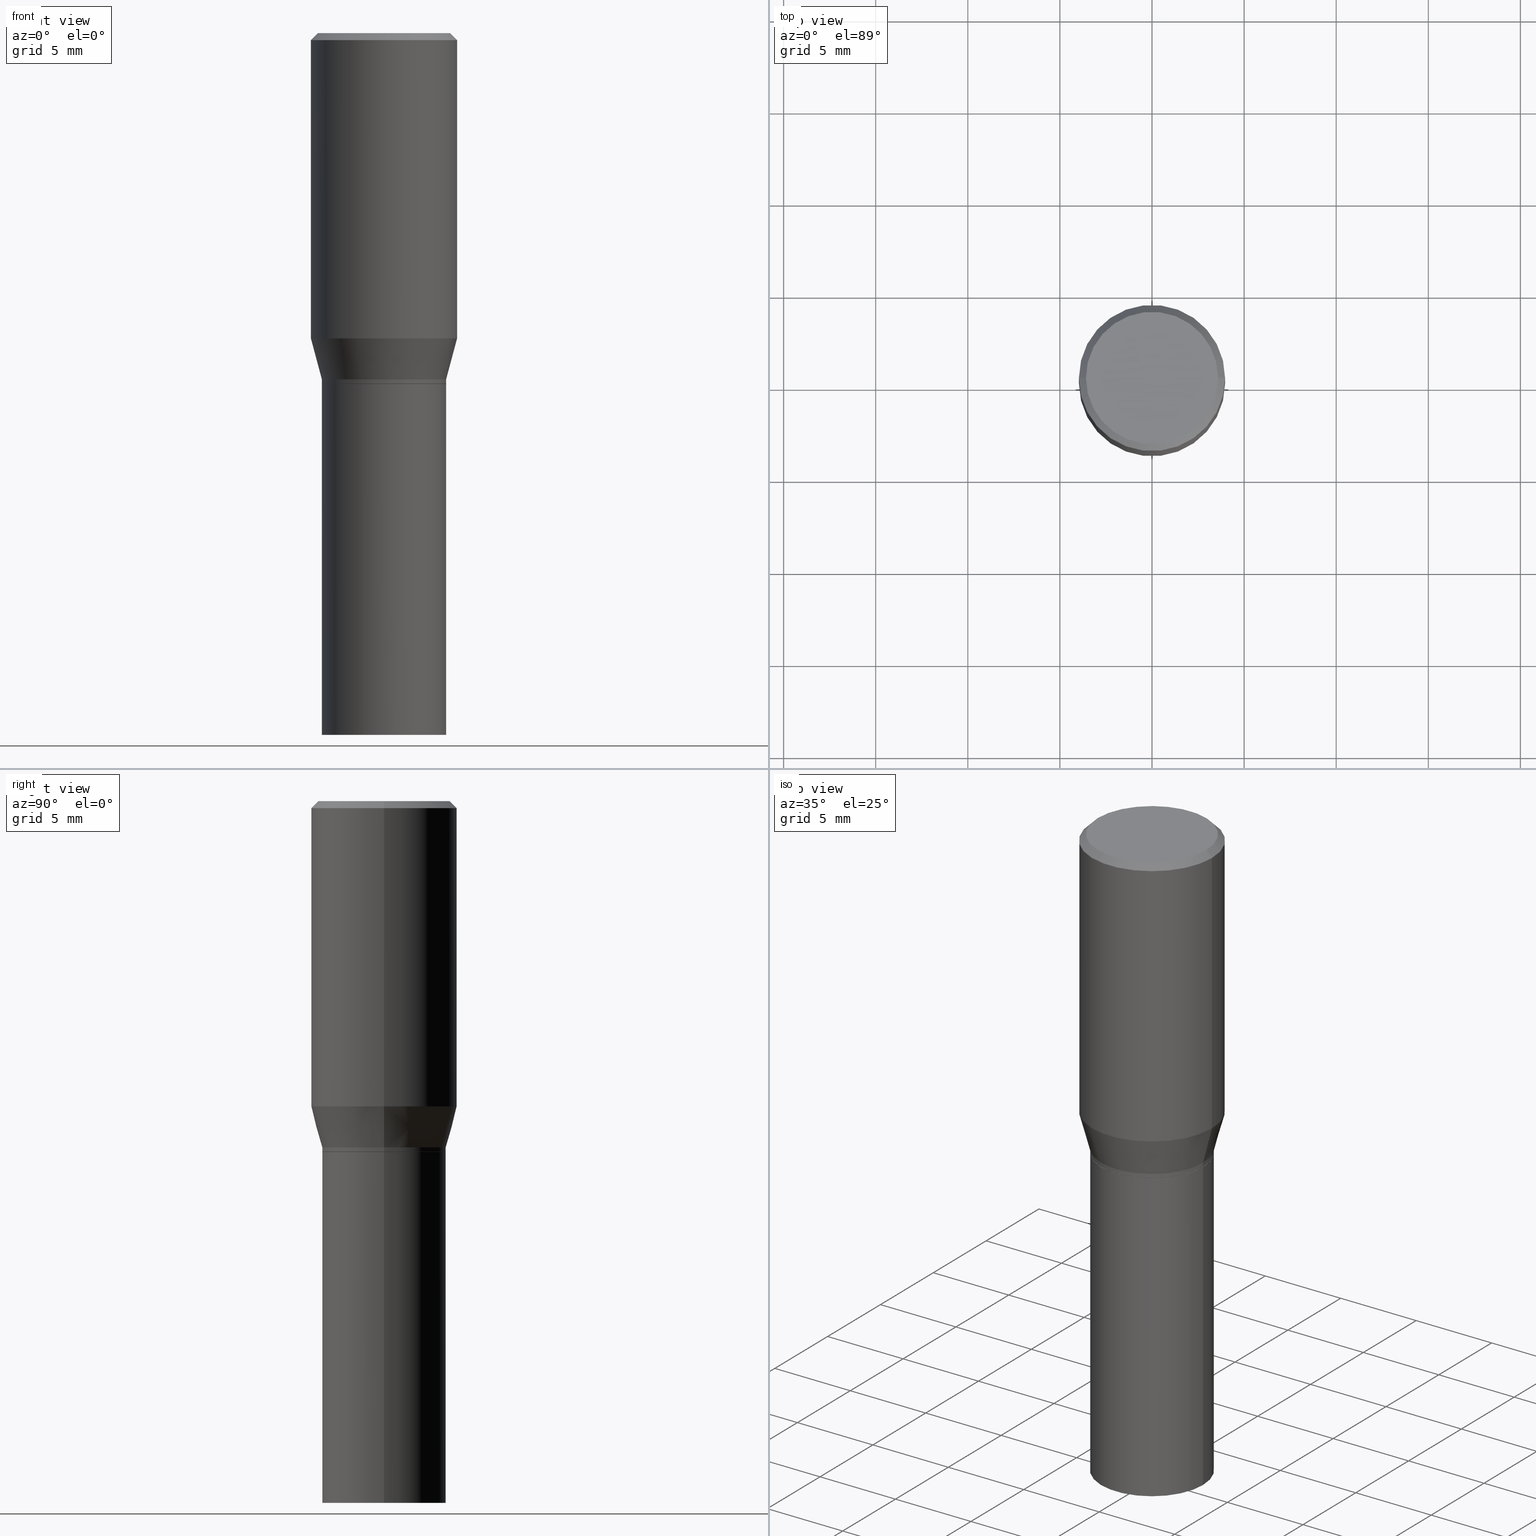
[diagram: canonical four-view strip — front | top / right | iso, engineering-drawing reading convention]
A machine part, canonical four-view strip (front | top / right | iso — engineering-drawing reading convention). The complete STEP part file that produces these views, byte-faithful:
ISO-10303-21;
HEADER;
FILE_DESCRIPTION (( 'STEP AP203' ),
    '1' );
FILE_NAME ('30447.STEP',
    '2024-03-13T16:10:57',
    ( '' ),
    ( '' ),
    'SwSTEP 2.0',
    'SolidWorks 2023',
    '' );
FILE_SCHEMA (( 'CONFIG_CONTROL_DESIGN' ));
ENDSEC;

DATA;
#1 = APPROVAL_DATE_TIME ( #61, #161 ) ;
#2 = EDGE_CURVE ( 'NONE', #108, #404, #413, .T. ) ;
#3 = CARTESIAN_POINT ( 'NONE',  ( -0.1562500000000000000, 1.110223024625156540E-15, -7.685836078523291160E-30 ) ) ;
#4 = LINE ( 'NONE', #408, #13 ) ;
#5 = ORIENTED_EDGE ( 'NONE', *, *, #305, .T. ) ;
#6 = CARTESIAN_POINT ( 'NONE',  ( -0.1412500000000000144, 1.012529588264508555E-15, -4.362760153143304915E-17 ) ) ;
#7 = ORIENTED_EDGE ( 'NONE', *, *, #399, .T. ) ;
#8 = DIRECTION ( 'NONE',  ( 0.2588190451025214611, 1.565188264969620982E-15, 0.9659258262890679791 ) ) ;
#9 = APPROVAL_ROLE ( '' ) ;
#10 = ORIENTED_EDGE ( 'NONE', *, *, #233, .T. ) ;
#11 = DIRECTION ( 'NONE',  ( 1.000000000000000000, -6.982962677686268288E-15, 0.000000000000000000 ) ) ;
#12 = CIRCLE ( 'NONE', #73, 0.1328000000000000569 ) ;
#13 = VECTOR ( 'NONE', #448, 39.37007874015748143 ) ;
#14 = ORIENTED_EDGE ( 'NONE', *, *, #102, .F. ) ;
#15 = ORIENTED_EDGE ( 'NONE', *, *, #276, .T. ) ;
#16 = DIRECTION ( 'NONE',  ( 1.000000000000000000, 0.000000000000000000, 0.000000000000000000 ) ) ;
#17 = EDGE_LOOP ( 'NONE', ( #354, #20, #10, #143 ) ) ;
#18 = AXIS2_PLACEMENT_3D ( 'NONE', #225, #379, #199 ) ;
#19 = AXIS2_PLACEMENT_3D ( 'NONE', #434, #430, #31 ) ;
#20 = ORIENTED_EDGE ( 'NONE', *, *, #30, .F. ) ;
#21 = DIRECTION ( 'NONE',  ( 1.000000000000000000, -6.982962677686263555E-15, 0.000000000000000000 ) ) ;
#22 = FACE_OUTER_BOUND ( 'NONE', #445, .T. ) ;
#23 = CARTESIAN_POINT ( 'NONE',  ( 0.1328000000000000014, -3.545948447729095705E-15, -0.7500000000000001110 ) ) ;
#24 = VECTOR ( 'NONE', #281, 39.37007874015748143 ) ;
#25 = DIRECTION ( 'NONE',  ( 1.000000000000000000, -6.982962677686266711E-15, 4.876176775795935232E-29 ) ) ;
#26 = DIRECTION ( 'NONE',  ( 1.000000000000000000, -6.982962677686265133E-15, 0.000000000000000000 ) ) ;
#27 = FACE_OUTER_BOUND ( 'NONE', #368, .T. ) ;
#28 = VECTOR ( 'NONE', #283, 39.37007874015748143 ) ;
#29 = PLANE ( 'NONE',  #272 ) ;
#30 = EDGE_CURVE ( 'NONE', #43, #258, #201, .T. ) ;
#31 = DIRECTION ( 'NONE',  ( 1.000000000000000000, -6.982962677686263555E-15, 0.000000000000000000 ) ) ;
#32 = CARTESIAN_POINT ( 'NONE',  ( 3.576687321579069994E-29, -5.368277968210015545E-15, -1.500000000000000222 ) ) ;
#33 = FACE_OUTER_BOUND ( 'NONE', #375, .T. ) ;
#34 = AXIS2_PLACEMENT_3D ( 'NONE', #68, #101, #171 ) ;
#35 = EDGE_LOOP ( 'NONE', ( #293, #378, #398, #185 ) ) ;
#36 = CARTESIAN_POINT ( 'NONE',  ( 0.1328000000000000569, -3.544202707059674202E-15, -0.7495000000000000551 ) ) ;
#37 = ORIENTED_EDGE ( 'NONE', *, *, #422, .T. ) ;
#38 = DIRECTION ( 'NONE',  ( -2.438088387897960049E-29, 3.491481338843145188E-15, 1.000000000000000000 ) ) ;
#39 = PERSON_AND_ORGANIZATION_ROLE ( 'design_supplier' ) ;
#40 = CC_DESIGN_PERSON_AND_ORGANIZATION_ASSIGNMENT ( #218, #223, ( #170 ) ) ;
#41 = AXIS2_PLACEMENT_3D ( 'NONE', #126, #393, #173 ) ;
#42 = CARTESIAN_POINT ( 'NONE',  ( 0.1323000000000000009, -3.542456966390252304E-15, -0.7500000000000001110 ) ) ;
#43 = VERTEX_POINT ( 'NONE', #6 ) ;
#44 = CARTESIAN_POINT ( 'NONE',  ( 1.595627822192971094E-29, -2.278133644900773069E-15, -0.6524834085625104141 ) ) ;
#45 = COORDINATED_UNIVERSAL_TIME_OFFSET ( 5, 0, .BEHIND. ) ;
#46 = ORIENTED_EDGE ( 'NONE', *, *, #274, .F. ) ;
#47 = PRODUCT ( '30447', '30447', '', ( #324 ) ) ;
#48 = ADVANCED_FACE ( 'NONE', ( #282 ), #442, .F. ) ;
#49 = CARTESIAN_POINT ( 'NONE',  ( -0.1328000000000000569, 9.436007530894134510E-16, -6.532345799858516735E-30 ) ) ;
#50 = CONICAL_SURFACE ( 'NONE', #41, 0.1562500000000000000, 0.7853981633974495002 ) ;
#51 = DIRECTION ( 'NONE',  ( 1.000000000000000000, -6.982962677686265133E-15, 0.000000000000000000 ) ) ;
#52 = DIRECTION ( 'NONE',  ( 2.438088387897960049E-29, -3.491481338843145188E-15, -1.000000000000000000 ) ) ;
#53 = PERSON ( 'UNSPECIFIED', 'UNSPECIFIED', 'UNSPECIFIED', ('UNSPECIFIED'), ('UNSPECIFIED'), ('UNSPECIFIED') ) ;
#54 = DIRECTION ( 'NONE',  ( 1.000000000000000000, -6.982962677686268288E-15, 0.000000000000000000 ) ) ;
#55 = CIRCLE ( 'NONE', #241, 0.1323000000000000009 ) ;
#56 = LOCAL_TIME ( 12, 10, 57.00000000000000000, #45 ) ;
#57 = EDGE_CURVE ( 'NONE', #258, #179, #91, .T. ) ;
#58 = CYLINDRICAL_SURFACE ( 'NONE', #424, 0.1328000000000000569 ) ;
#59 = DIRECTION ( 'NONE',  ( -2.445468806185136597E-29, 3.491481338843145583E-15, 1.000000000000000000 ) ) ;
#60 = ORIENTED_EDGE ( 'NONE', *, *, #67, .F. ) ;
#61 = DATE_AND_TIME ( #431, #112 ) ;
#62 = CARTESIAN_POINT ( 'NONE',  ( -0.1328000000000000569, -1.640095437654514777E-15, -0.7400000000000002132 ) ) ;
#63 = AXIS2_PLACEMENT_3D ( 'NONE', #74, #215, #437 ) ;
#64 = LINE ( 'NONE', #433, #202 ) ;
#65 = ADVANCED_FACE ( 'NONE', ( #345 ), #335, .T. ) ;
#66 = DIRECTION ( 'NONE',  ( 1.000000000000000000, -6.982962677686265133E-15, 0.000000000000000000 ) ) ;
#67 = EDGE_CURVE ( 'NONE', #178, #221, #130, .T. ) ;
#68 = CARTESIAN_POINT ( 'NONE',  ( 1.834101604638852448E-29, -2.618611004132359088E-15, -0.7500000000000001110 ) ) ;
#69 = MANIFOLD_SOLID_BREP ( 'Body-Move/Copy2[2]', #139 ) ;
#70 = EDGE_LOOP ( 'NONE', ( #77, #370, #159, #253 ) ) ;
#71 = AXIS2_PLACEMENT_3D ( 'NONE', #160, #417, #162 ) ;
#72 = ORIENTED_EDGE ( 'NONE', *, *, #2, .T. ) ;
#73 = AXIS2_PLACEMENT_3D ( 'NONE', #269, #454, #54 ) ;
#74 = CARTESIAN_POINT ( 'NONE',  ( 1.834101604638852448E-29, -2.618611004132359088E-15, -0.7500000000000001110 ) ) ;
#75 = CIRCLE ( 'NONE', #98, 0.1328000000000000014 ) ;
#76 = PERSON_AND_ORGANIZATION ( #53, #128 ) ;
#77 = ORIENTED_EDGE ( 'NONE', *, *, #102, .T. ) ;
#78 = ADVANCED_FACE ( 'NONE', ( #416 ), #382, .T. ) ;
#79 = CARTESIAN_POINT ( 'NONE',  ( 9.273374435967543661E-16, 0.1327999999999973924, -0.7500000000000004441 ) ) ;
#80 = APPROVAL_STATUS ( 'not_yet_approved' ) ;
#81 = VERTEX_POINT ( 'NONE', #383 ) ;
#82 = VERTEX_POINT ( 'NONE', #164 ) ;
#83 = DIRECTION ( 'NONE',  ( 1.000000000000000000, -6.982962677686265922E-15, 4.874209154772796007E-29 ) ) ;
#84 =( NAMED_UNIT ( * ) PLANE_ANGLE_UNIT ( ) SI_UNIT ( $, .RADIAN. ) );
#85 = EDGE_LOOP ( 'NONE', ( #407, #323, #342, #46 ) ) ;
#86 = SECURITY_CLASSIFICATION_LEVEL ( 'unclassified' ) ;
#87 = LENGTH_MEASURE_WITH_UNIT ( LENGTH_MEASURE( 0.02539999999999999897 ), #186 );
#88 = ADVANCED_FACE ( 'NONE', ( #232 ), #385, .T. ) ;
#89 = EDGE_CURVE ( 'NONE', #404, #108, #175, .T. ) ;
#90 = DIRECTION ( 'NONE',  ( 1.000000000000000000, -6.982962677686265133E-15, 0.000000000000000000 ) ) ;
#91 = LINE ( 'NONE', #95, #132 ) ;
#92 = CIRCLE ( 'NONE', #455, 0.1328000000000000014 ) ;
#93 = CC_DESIGN_APPROVAL ( #161, ( #170 ) ) ;
#94 = CARTESIAN_POINT ( 'NONE',  ( 0.000000000000000000, 0.000000000000000000, 0.000000000000000000 ) ) ;
#95 = CARTESIAN_POINT ( 'NONE',  ( 0.1562500000000000000, -1.124325032234449083E-15, -0.01499999999999999944 ) ) ;
#96 = CARTESIAN_POINT ( 'NONE',  ( 3.668203209277704895E-29, -5.237222008264718177E-15, -1.500000000000000222 ) ) ;
#97 = CIRCLE ( 'NONE', #438, 0.1328000000000000569 ) ;
#98 = AXIS2_PLACEMENT_3D ( 'NONE', #180, #217, #11 ) ;
#99 = CARTESIAN_POINT ( 'NONE',  ( -0.1562500000000000000, 1.038715698305832094E-15, -0.01499999999999999944 ) ) ;
#100 = EDGE_CURVE ( 'NONE', #395, #409, #12, .T. ) ;
#101 = DIRECTION ( 'NONE',  ( -2.445468806185136597E-29, 3.491481338843145583E-15, 1.000000000000000000 ) ) ;
#102 = EDGE_CURVE ( 'NONE', #409, #395, #432, .T. ) ;
#103 = CARTESIAN_POINT ( 'NONE',  ( 0.1328000000000000569, -3.511033634340664450E-15, -0.7400000000000002132 ) ) ;
#104 = AXIS2_PLACEMENT_3D ( 'NONE', #44, #251, #369 ) ;
#105 = AXIS2_PLACEMENT_3D ( 'NONE', #106, #397, #428 ) ;
#106 = CARTESIAN_POINT ( 'NONE',  ( 0.000000000000000000, 0.000000000000000000, 0.000000000000000000 ) ) ;
#107 = FACE_OUTER_BOUND ( 'NONE', #250, .T. ) ;
#108 = VERTEX_POINT ( 'NONE', #302 ) ;
#109 = FACE_OUTER_BOUND ( 'NONE', #182, .T. ) ;
#110 = EDGE_LOOP ( 'NONE', ( #401, #237, #306, #115 ) ) ;
#111 = ORIENTED_EDGE ( 'NONE', *, *, #116, .F. ) ;
#112 = LOCAL_TIME ( 12, 10, 57.00000000000000000, #353 ) ;
#113 = CARTESIAN_POINT ( 'NONE',  ( -0.1328000000000000569, -1.673264510373524331E-15, -0.7495000000000000551 ) ) ;
#114 = ORIENTED_EDGE ( 'NONE', *, *, #313, .F. ) ;
#115 = ORIENTED_EDGE ( 'NONE', *, *, #2, .F. ) ;
#116 = EDGE_CURVE ( 'NONE', #178, #373, #92, .T. ) ;
#117 = CARTESIAN_POINT ( 'NONE',  ( 0.1328000000000000569, -3.511033634340664450E-15, -0.7400000000000002132 ) ) ;
#118 = DATE_TIME_ROLE ( 'classification_date' ) ;
#119 = EDGE_CURVE ( 'NONE', #461, #82, #392, .T. ) ;
#120 = PERSON_AND_ORGANIZATION_ROLE ( 'creator' ) ;
#121 = VERTEX_POINT ( 'NONE', #23 ) ;
#122 = CIRCLE ( 'NONE', #19, 0.1328000000000000014 ) ;
#123 = PERSON_AND_ORGANIZATION_ROLE ( 'design_owner' ) ;
#124 = CARTESIAN_POINT ( 'NONE',  ( 1.809646916577001463E-29, -2.583696190743928228E-15, -0.7400000000000002132 ) ) ;
#125 = CC_DESIGN_PERSON_AND_ORGANIZATION_ASSIGNMENT ( #334, #120, ( #361 ) ) ;
#126 = CARTESIAN_POINT ( 'NONE',  ( 3.668203209277705088E-31, -5.237222008264718399E-17, -0.01499999999999999944 ) ) ;
#127 = AXIS2_PLACEMENT_3D ( 'NONE', #328, #244, #356 ) ;
#128 = ORGANIZATION ( 'UNSPECIFIED', 'UNSPECIFIED', '' ) ;
#129 = DIRECTION ( 'NONE',  ( -2.445468806185136597E-29, 3.491481338843145583E-15, 1.000000000000000000 ) ) ;
#130 = LINE ( 'NONE', #452, #248 ) ;
#131 = CARTESIAN_POINT ( 'NONE',  ( 0.1328000000000000569, -9.273374435967366167E-16, 6.475562758257005110E-30 ) ) ;
#132 = VECTOR ( 'NONE', #230, 39.37007874015748143 ) ;
#133 = ORIENTED_EDGE ( 'NONE', *, *, #198, .T. ) ;
#134 = VECTOR ( 'NONE', #8, 39.37007874015748143 ) ;
#135 = AXIS2_PLACEMENT_3D ( 'NONE', #138, #396, #243 ) ;
#136 = DIRECTION ( 'NONE',  ( 1.000000000000000000, -6.982962677686266711E-15, 4.876176775795935232E-29 ) ) ;
#137 = CYLINDRICAL_SURFACE ( 'NONE', #349, 0.1562500000000000000 ) ;
#138 = CARTESIAN_POINT ( 'NONE',  ( 3.668203209277705088E-31, -5.237222008264718399E-17, -0.01499999999999999944 ) ) ;
#139 = CLOSED_SHELL ( 'NONE', ( #78, #246, #188, #304, #88, #65, #231, #226, #48, #387, #362, #155 ) ) ;
#140 = AXIS2_PLACEMENT_3D ( 'NONE', #174, #141, #279 ) ;
#141 = DIRECTION ( 'NONE',  ( -2.445468806185136597E-29, 3.491481338843145583E-15, 1.000000000000000000 ) ) ;
#142 = LINE ( 'NONE', #117, #134 ) ;
#143 = ORIENTED_EDGE ( 'NONE', *, *, #333, .T. ) ;
#144 = ADVANCED_FACE ( 'NONE', ( #266 ), #344, .T. ) ;
#145 = CARTESIAN_POINT ( 'NONE',  ( 0.1562500000000000000, -1.091087918388479174E-15, 7.619026212181150377E-30 ) ) ;
#146 = ORIENTED_EDGE ( 'NONE', *, *, #152, .F. ) ;
#147 = AXIS2_PLACEMENT_3D ( 'NONE', #381, #167, #51 ) ;
#148 = CARTESIAN_POINT ( 'NONE',  ( 1.066899386337773103E-45, -1.523249566054587316E-31, -4.362760153142606033E-17 ) ) ;
#149 = COORDINATED_UNIVERSAL_TIME_OFFSET ( 5, 0, .BEHIND. ) ;
#150 = ORIENTED_EDGE ( 'NONE', *, *, #453, .F. ) ;
#151 = ORIENTED_EDGE ( 'NONE', *, *, #119, .F. ) ;
#152 = EDGE_CURVE ( 'NONE', #395, #81, #234, .T. ) ;
#153 = APPROVAL_STATUS ( 'not_yet_approved' ) ;
#154 = ORIENTED_EDGE ( 'NONE', *, *, #100, .T. ) ;
#155 = ADVANCED_FACE ( 'NONE', ( #386 ), #58, .T. ) ;
#156 = AXIS2_PLACEMENT_3D ( 'NONE', #303, #338, #90 ) ;
#157 = AXIS2_PLACEMENT_3D ( 'NONE', #311, #271, #465 ) ;
#158 =( NAMED_UNIT ( * ) SI_UNIT ( $, .STERADIAN. ) SOLID_ANGLE_UNIT ( ) );
#159 = ORIENTED_EDGE ( 'NONE', *, *, #198, .F. ) ;
#160 = CARTESIAN_POINT ( 'NONE',  ( 0.000000000000000000, 0.000000000000000000, 0.000000000000000000 ) ) ;
#161 = APPROVAL ( #390, 'UNSPECIFIED' ) ;
#162 = DIRECTION ( 'NONE',  ( 1.000000000000000000, -6.982962677686266711E-15, 4.876176775795935232E-29 ) ) ;
#163 = CARTESIAN_POINT ( 'NONE',  ( 9.863434782231852123E-16, 0.1412500000000000144, -5.149855398773074051E-16 ) ) ;
#164 = CARTESIAN_POINT ( 'NONE',  ( -0.1323000000000000009, -1.675913737547635335E-15, -0.7500000000000001110 ) ) ;
#165 = EDGE_LOOP ( 'NONE', ( #412, #285, #364, #220 ) ) ;
#166 = EDGE_CURVE ( 'NONE', #179, #410, #189, .T. ) ;
#167 = DIRECTION ( 'NONE',  ( -2.445468806185136597E-29, 3.491481338843145583E-15, 1.000000000000000000 ) ) ;
#168 = EDGE_CURVE ( 'NONE', #82, #461, #55, .T. ) ;
#169 = CARTESIAN_POINT ( 'NONE',  ( -0.1328000000000000014, -2.984315753109125576E-15, -0.7500000000000001110 ) ) ;
#170 = SECURITY_CLASSIFICATION ( '', '', #86 ) ;
#171 = DIRECTION ( 'NONE',  ( 1.000000000000000000, -6.982962677686267499E-15, 0.000000000000000000 ) ) ;
#172 = PRODUCT_RELATED_PRODUCT_CATEGORY ( 'detail', '', ( #47 ) ) ;
#173 = DIRECTION ( 'NONE',  ( -1.000000000000000000, 6.982962677686266711E-15, 0.000000000000000000 ) ) ;
#174 = CARTESIAN_POINT ( 'NONE',  ( 1.834101604638852448E-29, -2.618611004132359088E-15, -0.7500000000000001110 ) ) ;
#175 = CIRCLE ( 'NONE', #156, 0.1562500000000000000 ) ;
#176 = APPROVAL_PERSON_ORGANIZATION ( #211, #161, #425 ) ;
#177 = CARTESIAN_POINT ( 'NONE',  ( 0.1412500000000000144, -1.046685187209839144E-15, -4.362760153141894826E-17 ) ) ;
#178 = VERTEX_POINT ( 'NONE', #197 ) ;
#179 = VERTEX_POINT ( 'NONE', #339 ) ;
#180 = CARTESIAN_POINT ( 'NONE',  ( 1.834101604638852448E-29, -2.618611004132359088E-15, -0.7500000000000001110 ) ) ;
#181 = PERSON_AND_ORGANIZATION ( #53, #128 ) ;
#182 = EDGE_LOOP ( 'NONE', ( #151, #436 ) ) ;
#183 = ORIENTED_EDGE ( 'NONE', *, *, #119, .T. ) ;
#184 = DIRECTION ( 'NONE',  ( 1.000000000000000000, -6.982962677686265922E-15, 4.876176775795935793E-29 ) ) ;
#185 = ORIENTED_EDGE ( 'NONE', *, *, #100, .F. ) ;
#186 =( LENGTH_UNIT ( ) NAMED_UNIT ( * ) SI_UNIT ( $, .METRE. ) );
#187 = APPLICATION_CONTEXT ( 'configuration controlled 3d designs of mechanical parts and assemblies' ) ;
#188 = ADVANCED_FACE ( 'NONE', ( #22 ), #50, .T. ) ;
#189 = CIRCLE ( 'NONE', #270, 0.1562500000000000000 ) ;
#190 = CONICAL_SURFACE ( 'NONE', #34, 0.1323000000000000009, 0.7853981633974653764 ) ;
#191 = CALENDAR_DATE ( 2024, 13, 3 ) ;
#192 = VERTEX_POINT ( 'NONE', #103 ) ;
#193 = APPROVAL_DATE_TIME ( #415, #210 ) ;
#194 = ORIENTED_EDGE ( 'NONE', *, *, #30, .T. ) ;
#195 = VECTOR ( 'NONE', #240, 39.37007874015748143 ) ;
#196 = DIRECTION ( 'NONE',  ( -2.445468806185136597E-29, 3.491481338843145583E-15, 1.000000000000000000 ) ) ;
#197 = CARTESIAN_POINT ( 'NONE',  ( -0.1328000000000000014, -2.984315753109125576E-15, -1.500000000000000222 ) ) ;
#198 = EDGE_CURVE ( 'NONE', #192, #81, #97, .T. ) ;
#199 = DIRECTION ( 'NONE',  ( 1.000000000000000000, -6.982962677686268288E-15, 0.000000000000000000 ) ) ;
#200 = DIRECTION ( 'NONE',  ( 1.000000000000000000, -6.982962677686267499E-15, 0.000000000000000000 ) ) ;
#201 = CIRCLE ( 'NONE', #127, 0.1412500000000000144 ) ;
#202 = VECTOR ( 'NONE', #427, 39.37007874015748143 ) ;
#203 = DIRECTION ( 'NONE',  ( -2.445468806185136597E-29, 3.491481338843145583E-15, 1.000000000000000000 ) ) ;
#204 = FACE_OUTER_BOUND ( 'NONE', #165, .T. ) ;
#205 = LINE ( 'NONE', #131, #295 ) ;
#206 = AXIS2_PLACEMENT_3D ( 'NONE', #163, #52, #457 ) ;
#207 = VECTOR ( 'NONE', #466, 39.37007874015748143 ) ;
#208 = FACE_OUTER_BOUND ( 'NONE', #17, .T. ) ;
#209 = CARTESIAN_POINT ( 'NONE',  ( 3.668203209277705088E-31, -5.237222008264718399E-17, -0.01499999999999999944 ) ) ;
#210 = APPROVAL ( #153, 'UNSPECIFIED' ) ;
#211 = PERSON_AND_ORGANIZATION ( #53, #128 ) ;
#212 = DIRECTION ( 'NONE',  ( -2.445468806185136597E-29, 3.491481338843145583E-15, 1.000000000000000000 ) ) ;
#213 = CIRCLE ( 'NONE', #135, 0.1562500000000000000 ) ;
#214 = ADVANCED_FACE ( 'NONE', ( #107 ), #29, .F. ) ;
#215 = DIRECTION ( 'NONE',  ( -2.445468806185136597E-29, 3.491481338843145583E-15, 1.000000000000000000 ) ) ;
#216 = DATE_AND_TIME ( #290, #426 ) ;
#217 = DIRECTION ( 'NONE',  ( -2.445468806185136597E-29, 3.491481338843145583E-15, 1.000000000000000000 ) ) ;
#218 = PERSON_AND_ORGANIZATION ( #53, #128 ) ;
#219 = ORIENTED_EDGE ( 'NONE', *, *, #429, .T. ) ;
#220 = ORIENTED_EDGE ( 'NONE', *, *, #376, .F. ) ;
#221 = VERTEX_POINT ( 'NONE', #169 ) ;
#222 = AXIS2_PLACEMENT_3D ( 'NONE', #79, #318, #322 ) ;
#223 = PERSON_AND_ORGANIZATION_ROLE ( 'classification_officer' ) ;
#224 = CC_DESIGN_PERSON_AND_ORGANIZATION_ASSIGNMENT ( #181, #319, ( #300 ) ) ;
#225 = CARTESIAN_POINT ( 'NONE',  ( 1.832878870235759926E-29, -2.616865263462937979E-15, -0.7495000000000000551 ) ) ;
#226 = ADVANCED_FACE ( 'NONE', ( #208 ), #286, .T. ) ;
#227 = AXIS2_PLACEMENT_3D ( 'NONE', #209, #278, #315 ) ;
#228 = CIRCLE ( 'NONE', #63, 0.1328000000000000014 ) ;
#229 = CARTESIAN_POINT ( 'NONE',  ( 1.834101604638852448E-29, -2.618611004132359088E-15, -0.7500000000000001110 ) ) ;
#230 = DIRECTION ( 'NONE',  ( 0.7071067811865483499, -7.319954787623257623E-15, -0.7071067811865466846 ) ) ;
#231 = ADVANCED_FACE ( 'NONE', ( #27 ), #316, .T. ) ;
#232 = FACE_OUTER_BOUND ( 'NONE', #321, .T. ) ;
#233 = EDGE_CURVE ( 'NONE', #43, #410, #388, .T. ) ;
#234 = LINE ( 'NONE', #49, #235 ) ;
#235 = VECTOR ( 'NONE', #299, 39.37007874015748143 ) ;
#236 = CYLINDRICAL_SURFACE ( 'NONE', #343, 0.1328000000000000014 ) ;
#237 = ORIENTED_EDGE ( 'NONE', *, *, #280, .T. ) ;
#238 = CC_DESIGN_DATE_AND_TIME_ASSIGNMENT ( #403, #292, ( #361 ) ) ;
#239 = DIRECTION ( 'NONE',  ( 1.000000000000000000, -6.982962677686266711E-15, 4.876176775795936353E-29 ) ) ;
#240 = DIRECTION ( 'NONE',  ( -0.7071067811865483499, 2.468850131082265738E-15, -0.7071067811865466846 ) ) ;
#241 = AXIS2_PLACEMENT_3D ( 'NONE', #298, #420, #419 ) ;
#242 = LOCAL_TIME ( 12, 10, 57.00000000000000000, #259 ) ;
#243 = DIRECTION ( 'NONE',  ( 1.000000000000000000, -6.982962677686266711E-15, 0.000000000000000000 ) ) ;
#244 = DIRECTION ( 'NONE',  ( -2.445468806185136597E-29, 3.491481338843145583E-15, 1.000000000000000000 ) ) ;
#245 = DIRECTION ( 'NONE',  ( -2.438088387897960049E-29, 3.491481338843145188E-15, 1.000000000000000000 ) ) ;
#246 = ADVANCED_FACE ( 'NONE', ( #33 ), #190, .T. ) ;
#247 = LINE ( 'NONE', #145, #24 ) ;
#248 = VECTOR ( 'NONE', #421, 39.37007874015748143 ) ;
#249 = FACE_OUTER_BOUND ( 'NONE', #389, .T. ) ;
#250 = EDGE_LOOP ( 'NONE', ( #114, #111 ) ) ;
#251 = DIRECTION ( 'NONE',  ( -2.445468806185136597E-29, 3.491481338843145583E-15, 1.000000000000000000 ) ) ;
#252 = CALENDAR_DATE ( 2024, 13, 3 ) ;
#253 = ORIENTED_EDGE ( 'NONE', *, *, #276, .F. ) ;
#254 = CC_DESIGN_DATE_AND_TIME_ASSIGNMENT ( #444, #118, ( #170 ) ) ;
#255 = CARTESIAN_POINT ( 'NONE',  ( -0.1562500000000000000, -5.502990786655347834E-17, -0.01499999999999999944 ) ) ;
#256 = ORIENTED_EDGE ( 'NONE', *, *, #166, .T. ) ;
#257 = ORIENTED_EDGE ( 'NONE', *, *, #233, .F. ) ;
#258 = VERTEX_POINT ( 'NONE', #177 ) ;
#259 = COORDINATED_UNIVERSAL_TIME_OFFSET ( 5, 0, .BEHIND. ) ;
#260 = ORIENTED_EDGE ( 'NONE', *, *, #376, .T. ) ;
#261 = AXIS2_PLACEMENT_3D ( 'NONE', #229, #459, #200 ) ;
#262 =( CONVERSION_BASED_UNIT ( 'INCH', #87 ) LENGTH_UNIT ( ) NAMED_UNIT ( #310 ) );
#263 = CC_DESIGN_PERSON_AND_ORGANIZATION_ASSIGNMENT ( #377, #123, ( #47 ) ) ;
#264 = ORIENTED_EDGE ( 'NONE', *, *, #280, .F. ) ;
#265 = DIRECTION ( 'NONE',  ( 1.000000000000000000, -6.982962677686266711E-15, 0.000000000000000000 ) ) ;
#266 = FACE_OUTER_BOUND ( 'NONE', #85, .T. ) ;
#267 = CARTESIAN_POINT ( 'NONE',  ( 0.000000000000000000, 0.000000000000000000, 0.000000000000000000 ) ) ;
#268 = CARTESIAN_POINT ( 'NONE',  ( 3.668203209277705088E-31, -5.237222008264718399E-17, -0.01499999999999999944 ) ) ;
#269 = CARTESIAN_POINT ( 'NONE',  ( 1.832878870235759926E-29, -2.616865263462937979E-15, -0.7495000000000000551 ) ) ;
#270 = AXIS2_PLACEMENT_3D ( 'NONE', #268, #196, #265 ) ;
#271 = DIRECTION ( 'NONE',  ( -2.445468806185136597E-29, 3.491481338843145583E-15, 1.000000000000000000 ) ) ;
#272 = AXIS2_PLACEMENT_3D ( 'NONE', #32, #245, #357 ) ;
#273 = CC_DESIGN_APPROVAL ( #331, ( #300 ) ) ;
#274 = EDGE_CURVE ( 'NONE', #373, #121, #64, .T. ) ;
#275 = LINE ( 'NONE', #62, #326 ) ;
#276 = EDGE_CURVE ( 'NONE', #409, #192, #205, .T. ) ;
#277 = DIRECTION ( 'NONE',  ( -2.445468806185136597E-29, 3.491481338843145583E-15, 1.000000000000000000 ) ) ;
#278 = DIRECTION ( 'NONE',  ( 2.445468806185136597E-29, -3.491481338843145583E-15, -1.000000000000000000 ) ) ;
#279 = DIRECTION ( 'NONE',  ( 1.000000000000000000, -6.982962677686267499E-15, 0.000000000000000000 ) ) ;
#280 = EDGE_CURVE ( 'NONE', #81, #192, #439, .T. ) ;
#281 = DIRECTION ( 'NONE',  ( -2.445468806185136877E-29, 3.491481338843145188E-15, 1.000000000000000000 ) ) ;
#282 = FACE_OUTER_BOUND ( 'NONE', #294, .T. ) ;
#283 = DIRECTION ( 'NONE',  ( -0.7071067811865595631, 7.493145998870398336E-15, 0.7071067811865354713 ) ) ;
#284 = APPLICATION_PROTOCOL_DEFINITION ( 'international standard', 'config_control_design', 1994, #447 ) ;
#285 = ORIENTED_EDGE ( 'NONE', *, *, #320, .T. ) ;
#286 = CONICAL_SURFACE ( 'NONE', #227, 0.1562500000000000000, 0.7853981633974495002 ) ;
#287 = APPROVAL_PERSON_ORGANIZATION ( #296, #210, #451 ) ;
#288 = CARTESIAN_POINT ( 'NONE',  ( 0.1562500000000000000, -3.369221563289251454E-15, -0.6524834085625104141 ) ) ;
#289 = DESIGN_CONTEXT ( 'detailed design', #187, 'design' ) ;
#290 = CALENDAR_DATE ( 2024, 13, 3 ) ;
#291 = ORIENTED_EDGE ( 'NONE', *, *, #116, .T. ) ;
#292 = DATE_TIME_ROLE ( 'creation_date' ) ;
#293 = ORIENTED_EDGE ( 'NONE', *, *, #399, .F. ) ;
#294 = EDGE_LOOP ( 'NONE', ( #194, #332 ) ) ;
#295 = VECTOR ( 'NONE', #463, 39.37007874015748143 ) ;
#296 = PERSON_AND_ORGANIZATION ( #53, #128 ) ;
#297 = ADVANCED_FACE ( 'NONE', ( #391 ), #236, .T. ) ;
#298 = CARTESIAN_POINT ( 'NONE',  ( 1.834101604638852448E-29, -2.618611004132359088E-15, -0.7500000000000001110 ) ) ;
#299 = DIRECTION ( 'NONE',  ( -2.445468806185136877E-29, 3.491481338843145188E-15, 1.000000000000000000 ) ) ;
#300 = PRODUCT_DEFINITION_FORMATION_WITH_SPECIFIED_SOURCE ( 'ANY', '', #47, .NOT_KNOWN. ) ;
#301 = DIRECTION ( 'NONE',  ( -2.445468806185136597E-29, 3.491481338843145583E-15, 1.000000000000000000 ) ) ;
#302 = CARTESIAN_POINT ( 'NONE',  ( -0.1562500000000000000, -1.167910620275616332E-15, -0.6524834085625104141 ) ) ;
#303 = CARTESIAN_POINT ( 'NONE',  ( 1.595627822192971094E-29, -2.278133644900773069E-15, -0.6524834085625104141 ) ) ;
#304 = ADVANCED_FACE ( 'NONE', ( #204 ), #137, .T. ) ;
#305 = EDGE_CURVE ( 'NONE', #81, #108, #275, .T. ) ;
#306 = ORIENTED_EDGE ( 'NONE', *, *, #367, .T. ) ;
#307 = AXIS2_PLACEMENT_3D ( 'NONE', #94, #301, #341 ) ;
#308 = CARTESIAN_POINT ( 'NONE',  ( 0.000000000000000000, 0.000000000000000000, 0.000000000000000000 ) ) ;
#309 = CONICAL_SURFACE ( 'NONE', #140, 0.1323000000000000009, 0.7853981633974653764 ) ;
#310 = DIMENSIONAL_EXPONENTS ( 1.000000000000000000, 0.000000000000000000, 0.000000000000000000, 0.000000000000000000, 0.000000000000000000, 0.000000000000000000, 0.000000000000000000 ) ;
#311 = CARTESIAN_POINT ( 'NONE',  ( 1.809646916577001463E-29, -2.583696190743928228E-15, -0.7400000000000002132 ) ) ;
#312 = LINE ( 'NONE', #3, #207 ) ;
#313 = EDGE_CURVE ( 'NONE', #373, #178, #122, .T. ) ;
#314 = SHAPE_DEFINITION_REPRESENTATION ( #464, #330 ) ;
#315 = DIRECTION ( 'NONE',  ( -1.000000000000000000, 6.982962677686266711E-15, 0.000000000000000000 ) ) ;
#316 = CYLINDRICAL_SURFACE ( 'NONE', #105, 0.1562500000000000000 ) ;
#317 = ORIENTED_EDGE ( 'NONE', *, *, #89, .F. ) ;
#318 = DIRECTION ( 'NONE',  ( 2.438088387897960049E-29, -3.491481338843145188E-15, -1.000000000000000000 ) ) ;
#319 = PERSON_AND_ORGANIZATION_ROLE ( 'creator' ) ;
#320 = EDGE_CURVE ( 'NONE', #108, #410, #312, .T. ) ;
#321 = EDGE_LOOP ( 'NONE', ( #133, #5, #317, #352 ) ) ;
#322 = DIRECTION ( 'NONE',  ( -1.000000000000000000, 6.982962677686265922E-15, -4.876176775795935793E-29 ) ) ;
#323 = ORIENTED_EDGE ( 'NONE', *, *, #67, .T. ) ;
#324 = MECHANICAL_CONTEXT ( 'NONE', #447, 'mechanical' ) ;
#325 = ORIENTED_EDGE ( 'NONE', *, *, #429, .F. ) ;
#326 = VECTOR ( 'NONE', #348, 39.37007874015748143 ) ;
#327 = ORIENTED_EDGE ( 'NONE', *, *, #320, .F. ) ;
#328 = CARTESIAN_POINT ( 'NONE',  ( 1.066899386337773103E-45, -1.523249566054587316E-31, -4.362760153142606033E-17 ) ) ;
#329 = CARTESIAN_POINT ( 'NONE',  ( 0.000000000000000000, 0.000000000000000000, 0.000000000000000000 ) ) ;
#330 = ADVANCED_BREP_SHAPE_REPRESENTATION ( '30447', ( #384, #69, #380 ), #402 ) ;
#331 = APPROVAL ( #80, 'UNSPECIFIED' ) ;
#332 = ORIENTED_EDGE ( 'NONE', *, *, #453, .T. ) ;
#333 = EDGE_CURVE ( 'NONE', #410, #179, #213, .T. ) ;
#334 = PERSON_AND_ORGANIZATION ( #53, #128 ) ;
#335 = CONICAL_SURFACE ( 'NONE', #147, 0.1328000000000000569, 0.2617993877991501850 ) ;
#336 = CIRCLE ( 'NONE', #456, 0.1412500000000000144 ) ;
#337 = ORIENTED_EDGE ( 'NONE', *, *, #333, .F. ) ;
#338 = DIRECTION ( 'NONE',  ( -2.445468806185136597E-29, 3.491481338843145583E-15, 1.000000000000000000 ) ) ;
#339 = CARTESIAN_POINT ( 'NONE',  ( 0.1562500000000000000, -1.143460138471126253E-15, -0.01499999999999999944 ) ) ;
#340 = CC_DESIGN_PERSON_AND_ORGANIZATION_ASSIGNMENT ( #374, #39, ( #300 ) ) ;
#341 = DIRECTION ( 'NONE',  ( 1.000000000000000000, -6.982962677686266711E-15, 4.876176775795935232E-29 ) ) ;
#342 = ORIENTED_EDGE ( 'NONE', *, *, #422, .F. ) ;
#343 = AXIS2_PLACEMENT_3D ( 'NONE', #350, #59, #136 ) ;
#344 = CYLINDRICAL_SURFACE ( 'NONE', #71, 0.1328000000000000014 ) ;
#345 = FACE_OUTER_BOUND ( 'NONE', #110, .T. ) ;
#346 = CARTESIAN_POINT ( 'NONE',  ( 1.809646916577001463E-29, -2.583696190743928228E-15, -0.7400000000000002132 ) ) ;
#347 = CLOSED_SHELL ( 'NONE', ( #144, #214, #297, #423 ) ) ;
#348 = DIRECTION ( 'NONE',  ( -0.2588190451025214611, 5.211531920934550253E-15, 0.9659258262890679791 ) ) ;
#349 = AXIS2_PLACEMENT_3D ( 'NONE', #308, #277, #239 ) ;
#350 = CARTESIAN_POINT ( 'NONE',  ( 0.000000000000000000, 0.000000000000000000, 0.000000000000000000 ) ) ;
#351 = UNCERTAINTY_MEASURE_WITH_UNIT (LENGTH_MEASURE( 1.000000000000000082E-05 ), #262, 'distance_accuracy_value', 'NONE');
#352 = ORIENTED_EDGE ( 'NONE', *, *, #367, .F. ) ;
#353 = COORDINATED_UNIVERSAL_TIME_OFFSET ( 5, 0, .BEHIND. ) ;
#354 = ORIENTED_EDGE ( 'NONE', *, *, #57, .F. ) ;
#355 = FACE_OUTER_BOUND ( 'NONE', #35, .T. ) ;
#356 = DIRECTION ( 'NONE',  ( 1.000000000000000000, -6.982962677686265922E-15, 4.874209154772796007E-29 ) ) ;
#357 = DIRECTION ( 'NONE',  ( 1.000000000000000000, -6.982962677686265922E-15, 4.876176775795935793E-29 ) ) ;
#358 = ORIENTED_EDGE ( 'NONE', *, *, #274, .T. ) ;
#359 = ORIENTED_EDGE ( 'NONE', *, *, #458, .F. ) ;
#360 = APPROVAL_PERSON_ORGANIZATION ( #76, #331, #9 ) ;
#361 = PRODUCT_DEFINITION ( 'UNKNOWN', '', #300, #289 ) ;
#362 = ADVANCED_FACE ( 'NONE', ( #355 ), #309, .T. ) ;
#363 = LINE ( 'NONE', #400, #28 ) ;
#364 = ORIENTED_EDGE ( 'NONE', *, *, #166, .F. ) ;
#365 = APPROVAL_DATE_TIME ( #216, #331 ) ;
#366 = PLANE ( 'NONE',  #418 ) ;
#367 = EDGE_CURVE ( 'NONE', #192, #404, #142, .T. ) ;
#368 = EDGE_LOOP ( 'NONE', ( #327, #72, #260, #337 ) ) ;
#369 = DIRECTION ( 'NONE',  ( 1.000000000000000000, -6.982962677686265133E-15, 0.000000000000000000 ) ) ;
#370 = ORIENTED_EDGE ( 'NONE', *, *, #152, .T. ) ;
#371 = CALENDAR_DATE ( 2024, 13, 3 ) ;
#372 = ORIENTED_EDGE ( 'NONE', *, *, #57, .T. ) ;
#373 = VERTEX_POINT ( 'NONE', #435 ) ;
#374 = PERSON_AND_ORGANIZATION ( #53, #128 ) ;
#375 = EDGE_LOOP ( 'NONE', ( #183, #7, #14, #359 ) ) ;
#376 = EDGE_CURVE ( 'NONE', #404, #179, #247, .T. ) ;
#377 = PERSON_AND_ORGANIZATION ( #53, #128 ) ;
#378 = ORIENTED_EDGE ( 'NONE', *, *, #168, .T. ) ;
#379 = DIRECTION ( 'NONE',  ( -2.445468806185136597E-29, 3.491481338843145583E-15, 1.000000000000000000 ) ) ;
#380 = AXIS2_PLACEMENT_3D ( 'NONE', #329, #446, #16 ) ;
#381 = CARTESIAN_POINT ( 'NONE',  ( 1.809646916577001463E-29, -2.583696190743928228E-15, -0.7400000000000002132 ) ) ;
#382 = CYLINDRICAL_SURFACE ( 'NONE', #307, 0.1328000000000000569 ) ;
#383 = CARTESIAN_POINT ( 'NONE',  ( -0.1328000000000000569, -1.404003028965065357E-15, -0.7400000000000002132 ) ) ;
#384 = MANIFOLD_SOLID_BREP ( 'Body-Move/Copy2[1]', #347 ) ;
#385 = CONICAL_SURFACE ( 'NONE', #450, 0.1328000000000000569, 0.2617993877991501850 ) ;
#386 = FACE_OUTER_BOUND ( 'NONE', #449, .T. ) ;
#387 = ADVANCED_FACE ( 'NONE', ( #109 ), #366, .F. ) ;
#388 = LINE ( 'NONE', #99, #195 ) ;
#389 = EDGE_LOOP ( 'NONE', ( #37, #219 ) ) ;
#390 = APPROVAL_STATUS ( 'not_yet_approved' ) ;
#391 = FACE_OUTER_BOUND ( 'NONE', #441, .T. ) ;
#392 = CIRCLE ( 'NONE', #261, 0.1323000000000000009 ) ;
#393 = DIRECTION ( 'NONE',  ( 2.445468806185136597E-29, -3.491481338843145583E-15, -1.000000000000000000 ) ) ;
#394 = CC_DESIGN_APPROVAL ( #210, ( #361 ) ) ;
#395 = VERTEX_POINT ( 'NONE', #113 ) ;
#396 = DIRECTION ( 'NONE',  ( -2.445468806185136597E-29, 3.491481338843145583E-15, 1.000000000000000000 ) ) ;
#397 = DIRECTION ( 'NONE',  ( -2.445468806185136597E-29, 3.491481338843145583E-15, 1.000000000000000000 ) ) ;
#398 = ORIENTED_EDGE ( 'NONE', *, *, #458, .T. ) ;
#399 = EDGE_CURVE ( 'NONE', #82, #395, #363, .T. ) ;
#400 = CARTESIAN_POINT ( 'NONE',  ( -0.1323000000000000009, -1.678562964721746930E-15, -0.7500000000000001110 ) ) ;
#401 = ORIENTED_EDGE ( 'NONE', *, *, #305, .F. ) ;
#402 =( GEOMETRIC_REPRESENTATION_CONTEXT ( 3 ) GLOBAL_UNCERTAINTY_ASSIGNED_CONTEXT ( ( #351 ) ) GLOBAL_UNIT_ASSIGNED_CONTEXT ( ( #262, #84, #158 ) ) REPRESENTATION_CONTEXT ( 'NONE', 'WORKASPACE' ) );
#403 = DATE_AND_TIME ( #371, #242 ) ;
#404 = VERTEX_POINT ( 'NONE', #288 ) ;
#405 = PLANE ( 'NONE',  #222 ) ;
#406 = DIRECTION ( 'NONE',  ( -2.445468806185136597E-29, 3.491481338843145583E-15, 1.000000000000000000 ) ) ;
#407 = ORIENTED_EDGE ( 'NONE', *, *, #313, .T. ) ;
#408 = CARTESIAN_POINT ( 'NONE',  ( 0.1323000000000000009, -3.542456966390252304E-15, -0.7500000000000001110 ) ) ;
#409 = VERTEX_POINT ( 'NONE', #36 ) ;
#410 = VERTEX_POINT ( 'NONE', #255 ) ;
#411 = APPLICATION_PROTOCOL_DEFINITION ( 'international standard', 'config_control_design', 1994, #187 ) ;
#412 = ORIENTED_EDGE ( 'NONE', *, *, #89, .T. ) ;
#413 = CIRCLE ( 'NONE', #104, 0.1562500000000000000 ) ;
#414 = CC_DESIGN_SECURITY_CLASSIFICATION ( #170, ( #300 ) ) ;
#415 = DATE_AND_TIME ( #252, #462 ) ;
#416 = FACE_OUTER_BOUND ( 'NONE', #70, .T. ) ;
#417 = DIRECTION ( 'NONE',  ( -2.445468806185136597E-29, 3.491481338843145583E-15, 1.000000000000000000 ) ) ;
#418 = AXIS2_PLACEMENT_3D ( 'NONE', #443, #38, #184 ) ;
#419 = DIRECTION ( 'NONE',  ( 1.000000000000000000, -6.982962677686267499E-15, 0.000000000000000000 ) ) ;
#420 = DIRECTION ( 'NONE',  ( -2.445468806185136597E-29, 3.491481338843145583E-15, 1.000000000000000000 ) ) ;
#421 = DIRECTION ( 'NONE',  ( -2.445468806185136877E-29, 3.491481338843145188E-15, 1.000000000000000000 ) ) ;
#422 = EDGE_CURVE ( 'NONE', #121, #221, #228, .T. ) ;
#423 = ADVANCED_FACE ( 'NONE', ( #249 ), #405, .F. ) ;
#424 = AXIS2_PLACEMENT_3D ( 'NONE', #267, #203, #25 ) ;
#425 = APPROVAL_ROLE ( '' ) ;
#426 = LOCAL_TIME ( 12, 10, 57.00000000000000000, #149 ) ;
#427 = DIRECTION ( 'NONE',  ( -2.445468806185136877E-29, 3.491481338843145188E-15, 1.000000000000000000 ) ) ;
#428 = DIRECTION ( 'NONE',  ( 1.000000000000000000, -6.982962677686266711E-15, 4.876176775795936353E-29 ) ) ;
#429 = EDGE_CURVE ( 'NONE', #221, #121, #75, .T. ) ;
#430 = DIRECTION ( 'NONE',  ( -2.445468806185136597E-29, 3.491481338843145583E-15, 1.000000000000000000 ) ) ;
#431 = CALENDAR_DATE ( 2024, 13, 3 ) ;
#432 = CIRCLE ( 'NONE', #18, 0.1328000000000000569 ) ;
#433 = CARTESIAN_POINT ( 'NONE',  ( 0.1328000000000000014, -9.273374435967362223E-16, 6.475562758257002307E-30 ) ) ;
#434 = CARTESIAN_POINT ( 'NONE',  ( 3.668203209277704895E-29, -5.237222008264718177E-15, -1.500000000000000222 ) ) ;
#435 = CARTESIAN_POINT ( 'NONE',  ( 0.1328000000000000014, -6.164559451861454793E-15, -1.500000000000000222 ) ) ;
#436 = ORIENTED_EDGE ( 'NONE', *, *, #168, .F. ) ;
#437 = DIRECTION ( 'NONE',  ( 1.000000000000000000, -6.982962677686268288E-15, 0.000000000000000000 ) ) ;
#438 = AXIS2_PLACEMENT_3D ( 'NONE', #346, #212, #66 ) ;
#439 = CIRCLE ( 'NONE', #157, 0.1328000000000000569 ) ;
#440 = COORDINATED_UNIVERSAL_TIME_OFFSET ( 5, 0, .BEHIND. ) ;
#441 = EDGE_LOOP ( 'NONE', ( #60, #291, #358, #325 ) ) ;
#442 = PLANE ( 'NONE',  #206 ) ;
#443 = CARTESIAN_POINT ( 'NONE',  ( 1.834101604638852448E-29, -2.618611004132359088E-15, -0.7500000000000001110 ) ) ;
#444 = DATE_AND_TIME ( #191, #56 ) ;
#445 = EDGE_LOOP ( 'NONE', ( #150, #372, #256, #257 ) ) ;
#446 = DIRECTION ( 'NONE',  ( 0.000000000000000000, 0.000000000000000000, 1.000000000000000000 ) ) ;
#447 = APPLICATION_CONTEXT ( 'configuration controlled 3d designs of mechanical parts and assemblies' ) ;
#448 = DIRECTION ( 'NONE',  ( 0.7071067811865595631, -2.468850131082382884E-15, 0.7071067811865354713 ) ) ;
#449 = EDGE_LOOP ( 'NONE', ( #146, #154, #15, #264 ) ) ;
#450 = AXIS2_PLACEMENT_3D ( 'NONE', #124, #129, #26 ) ;
#451 = APPROVAL_ROLE ( '' ) ;
#452 = CARTESIAN_POINT ( 'NONE',  ( -0.1328000000000000014, 9.436007530894130566E-16, -6.532345799858513932E-30 ) ) ;
#453 = EDGE_CURVE ( 'NONE', #258, #43, #336, .T. ) ;
#454 = DIRECTION ( 'NONE',  ( -2.445468806185136597E-29, 3.491481338843145583E-15, 1.000000000000000000 ) ) ;
#455 = AXIS2_PLACEMENT_3D ( 'NONE', #96, #460, #21 ) ;
#456 = AXIS2_PLACEMENT_3D ( 'NONE', #148, #406, #83 ) ;
#457 = DIRECTION ( 'NONE',  ( -1.000000000000000000, 6.982962677686265922E-15, -4.876176775795935793E-29 ) ) ;
#458 = EDGE_CURVE ( 'NONE', #461, #409, #4, .T. ) ;
#459 = DIRECTION ( 'NONE',  ( -2.445468806185136597E-29, 3.491481338843145583E-15, 1.000000000000000000 ) ) ;
#460 = DIRECTION ( 'NONE',  ( -2.445468806185136597E-29, 3.491481338843145583E-15, 1.000000000000000000 ) ) ;
#461 = VERTEX_POINT ( 'NONE', #42 ) ;
#462 = LOCAL_TIME ( 12, 10, 57.00000000000000000, #440 ) ;
#463 = DIRECTION ( 'NONE',  ( -2.445468806185136877E-29, 3.491481338843145188E-15, 1.000000000000000000 ) ) ;
#464 = PRODUCT_DEFINITION_SHAPE ( 'NONE', 'NONE',  #361 ) ;
#465 = DIRECTION ( 'NONE',  ( 1.000000000000000000, -6.982962677686265133E-15, 0.000000000000000000 ) ) ;
#466 = DIRECTION ( 'NONE',  ( -2.445468806185136877E-29, 3.491481338843145188E-15, 1.000000000000000000 ) ) ;
ENDSEC;
END-ISO-10303-21;
